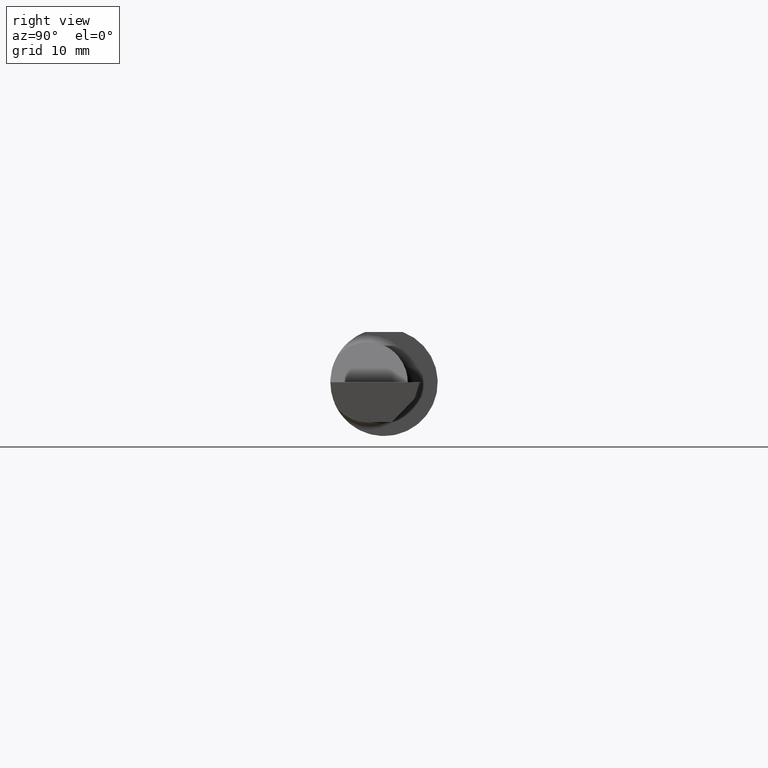
[diagram: clean part render]
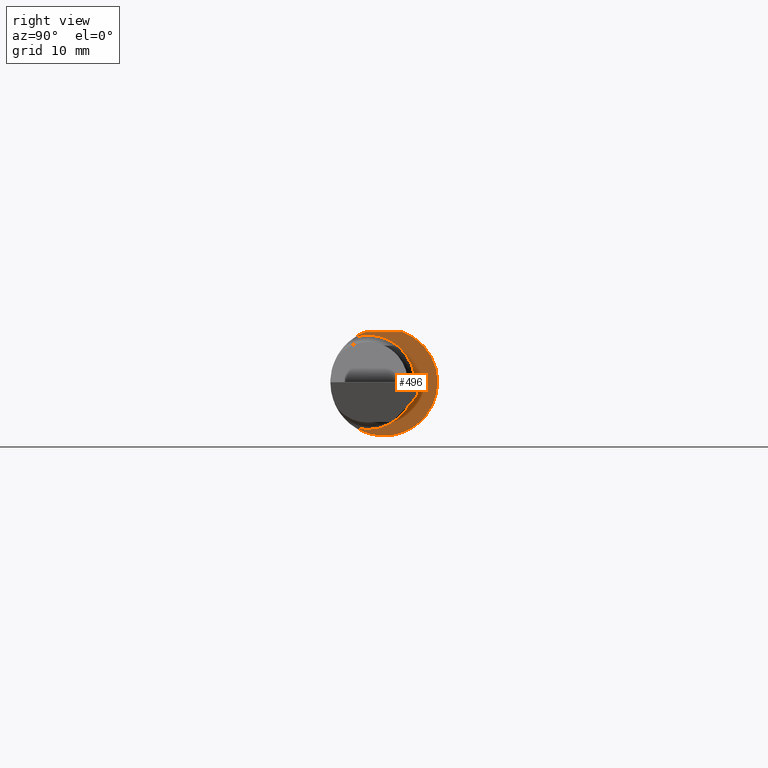
[diagram: same view with one face highlighted and labeled with its STEP entity id]
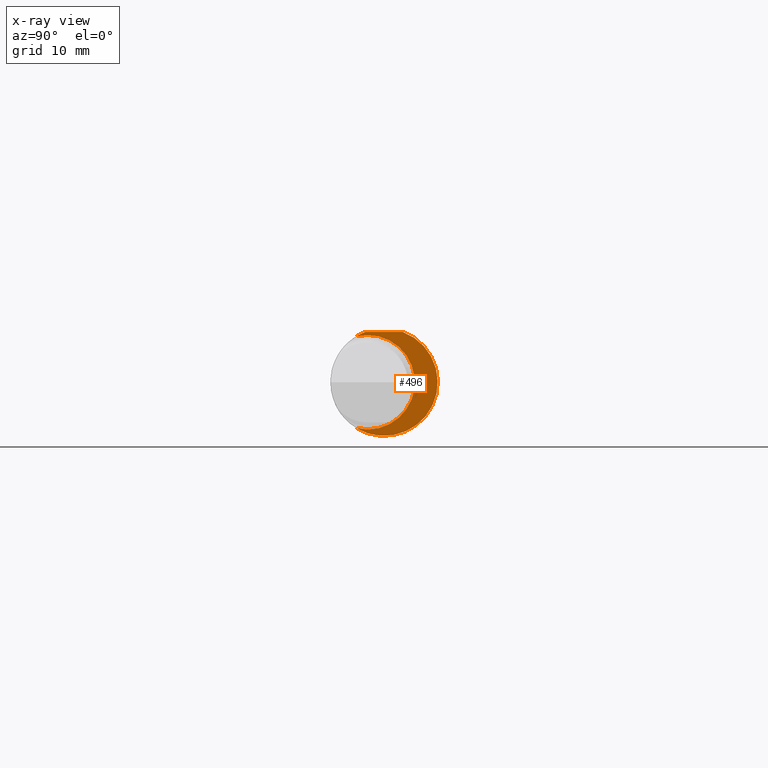
[diagram: x-ray of the same camera — body ghosted, the highlighted face saturated]
A machine part, right view. The second image highlights one B-rep face of the part: STEP entity #496.
The next image is the same camera in x-ray: the body ghosted, the highlighted face saturated — about 3% of this face is hidden behind the body in this view.
In plain terms, the highlighted planar face has unit normal (1, 0, 0).
Its self-contained STEP definition (entity closure, byte-faithful):
#21 = ORIENTED_EDGE ( 'NONE', *, *, #201, .T. ) ;
#43 = DIRECTION ( 'NONE',  ( 0.000000000000000000, 1.000000000000000000, 0.000000000000000000 ) ) ;
#58 = ORIENTED_EDGE ( 'NONE', *, *, #484, .T. ) ;
#66 = CIRCLE ( 'NONE', #542, 0.1873499999999999888 ) ;
#118 = CARTESIAN_POINT ( 'NONE',  ( 1.699999999999999956, -0.05740000000000000657, 0.000000000000000000 ) ) ;
#126 = AXIS2_PLACEMENT_3D ( 'NONE', #252, #660, #608 ) ;
#186 = CARTESIAN_POINT ( 'NONE',  ( 1.699999999999999956, -0.09715400696864101571, -0.1601908905959925355 ) ) ;
#189 = VECTOR ( 'NONE', #385, 39.37007874015748143 ) ;
#196 = ORIENTED_EDGE ( 'NONE', *, *, #616, .T. ) ;
#201 = EDGE_CURVE ( 'NONE', #625, #229, #653, .T. ) ;
#205 = DIRECTION ( 'NONE',  ( -6.829619984160658046E-18, 1.000000000000000000, 0.000000000000000000 ) ) ;
#207 = CARTESIAN_POINT ( 'NONE',  ( 1.699999999999999956, 0.000000000000000000, 0.000000000000000000 ) ) ;
#229 = VERTEX_POINT ( 'NONE', #503 ) ;
#252 = CARTESIAN_POINT ( 'NONE',  ( 1.699999999999999956, 0.000000000000000000, 0.000000000000000000 ) ) ;
#258 = CARTESIAN_POINT ( 'NONE',  ( 1.699999999999999956, 0.1076500000000000096, 0.000000000000000000 ) ) ;
#268 = DIRECTION ( 'NONE',  ( 0.000000000000000000, -1.000000000000000000, 0.000000000000000000 ) ) ;
#300 = CIRCLE ( 'NONE', #126, 0.1873499999999999888 ) ;
#306 = VERTEX_POINT ( 'NONE', #186 ) ;
#316 = PLANE ( 'NONE',  #663 ) ;
#321 = EDGE_CURVE ( 'NONE', #306, #625, #300, .T. ) ;
#362 = DIRECTION ( 'NONE',  ( 1.000000000000000000, 6.829619984160658046E-18, 0.000000000000000000 ) ) ;
#385 = DIRECTION ( 'NONE',  ( 6.829619984160658046E-18, -1.000000000000000000, 1.438723400918613551E-16 ) ) ;
#392 = CARTESIAN_POINT ( 'NONE',  ( 1.699999999999999956, -0.09715400696864101571, 0.1601908905959925355 ) ) ;
#445 = CARTESIAN_POINT ( 'NONE',  ( 1.699999999999999956, 0.2373500000000000332, 0.1753499999999999504 ) ) ;
#466 = CIRCLE ( 'NONE', #689, 0.1650500000000000300 ) ;
#484 = EDGE_CURVE ( 'NONE', #229, #550, #66, .T. ) ;
#496 = ADVANCED_FACE ( 'NONE', ( #628 ), #316, .T. ) ;
#503 = CARTESIAN_POINT ( 'NONE',  ( 1.699999999999999956, -0.06597272163553659363, 0.1753499999999999781 ) ) ;
#510 = EDGE_LOOP ( 'NONE', ( #598, #21, #58, #196 ) ) ;
#542 = AXIS2_PLACEMENT_3D ( 'NONE', #207, #362, #43 ) ;
#550 = VERTEX_POINT ( 'NONE', #392 ) ;
#593 = DIRECTION ( 'NONE',  ( -1.000000000000000000, -6.829619984160658046E-18, -0.000000000000000000 ) ) ;
#598 = ORIENTED_EDGE ( 'NONE', *, *, #321, .T. ) ;
#608 = DIRECTION ( 'NONE',  ( 0.000000000000000000, 1.000000000000000000, 0.000000000000000000 ) ) ;
#616 = EDGE_CURVE ( 'NONE', #550, #306, #466, .T. ) ;
#625 = VERTEX_POINT ( 'NONE', #696 ) ;
#628 = FACE_OUTER_BOUND ( 'NONE', #510, .T. ) ;
#653 = LINE ( 'NONE', #445, #189 ) ;
#660 = DIRECTION ( 'NONE',  ( 1.000000000000000000, 6.829619984160658046E-18, 0.000000000000000000 ) ) ;
#663 = AXIS2_PLACEMENT_3D ( 'NONE', #258, #691, #205 ) ;
#689 = AXIS2_PLACEMENT_3D ( 'NONE', #118, #593, #268 ) ;
#691 = DIRECTION ( 'NONE',  ( 1.000000000000000000, 6.829619984160658046E-18, 0.000000000000000000 ) ) ;
#696 = CARTESIAN_POINT ( 'NONE',  ( 1.699999999999999956, 0.06597272163553663527, 0.1753499999999999781 ) ) ;